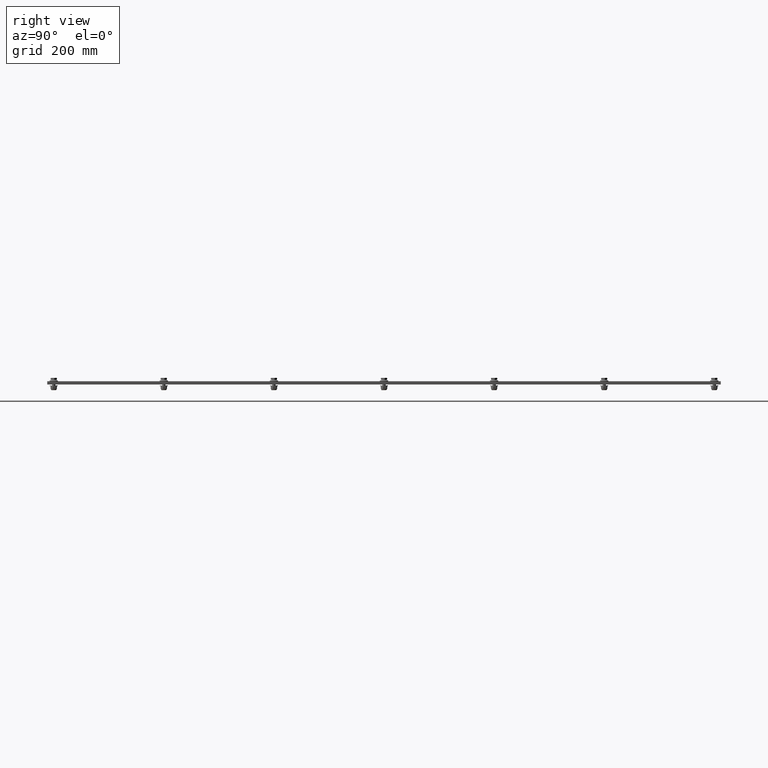
[diagram: clean part render]
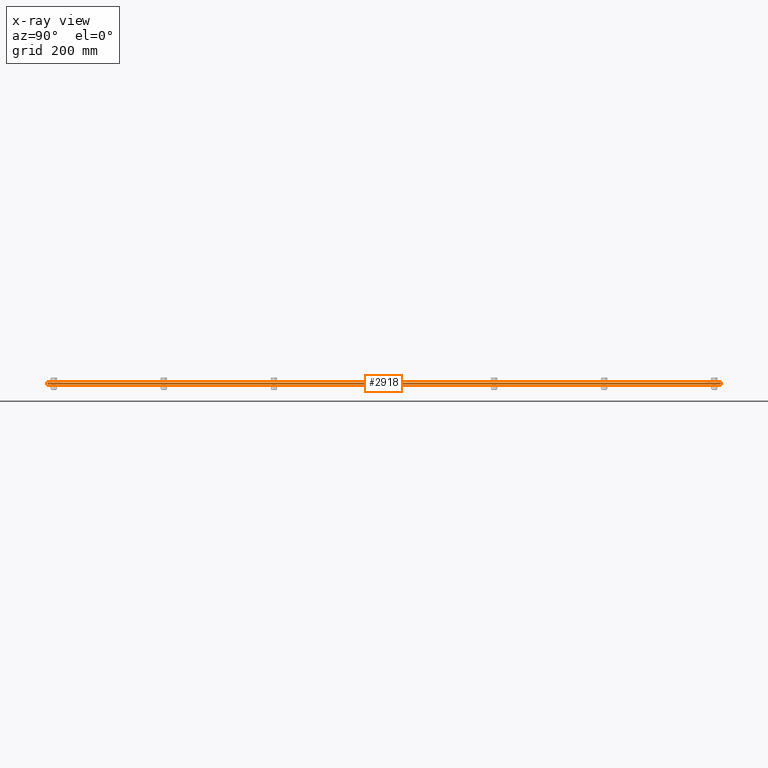
[diagram: x-ray — body ghosted, one internal face saturated and labeled with its STEP entity id]
A machine part, right view, then the same camera in x-ray: the body is ghosted and one INTERNAL B-rep face — a face not visible from any outside direction — is saturated and labeled: STEP entity #2918.
In plain terms, the highlighted planar face has unit normal (1, 0, 0).
Its self-contained STEP definition (entity closure, byte-faithful):
#619=FACE_OUTER_BOUND('',#882,.T.);
#882=EDGE_LOOP('',(#2226,#2227,#2228,#2229));
#1107=LINE('',#4549,#1272);
#1108=LINE('',#4551,#1273);
#1109=LINE('',#4553,#1274);
#1110=LINE('',#4554,#1275);
#1272=VECTOR('',#3733,52.);
#1273=VECTOR('',#3734,0.125);
#1274=VECTOR('',#3735,52.);
#1275=VECTOR('',#3736,0.125);
#1505=VERTEX_POINT('',#4547);
#1506=VERTEX_POINT('',#4548);
#1507=VERTEX_POINT('',#4550);
#1508=VERTEX_POINT('',#4552);
#1785=EDGE_CURVE('',#1505,#1506,#1107,.T.);
#1786=EDGE_CURVE('',#1507,#1506,#1108,.T.);
#1787=EDGE_CURVE('',#1508,#1507,#1109,.T.);
#1788=EDGE_CURVE('',#1508,#1505,#1110,.T.);
#2226=ORIENTED_EDGE('',*,*,#1785,.T.);
#2227=ORIENTED_EDGE('',*,*,#1786,.F.);
#2228=ORIENTED_EDGE('',*,*,#1787,.F.);
#2229=ORIENTED_EDGE('',*,*,#1788,.T.);
#2670=PLANE('',#3176);
#2918=ADVANCED_FACE('',(#619),#2670,.T.);
#3176=AXIS2_PLACEMENT_3D('',#4546,#3731,#3732);
#3731=DIRECTION('center_axis',(1.,3.22778347559101E-16,0.));
#3732=DIRECTION('ref_axis',(0.,0.,-1.));
#3733=DIRECTION('',(3.22778347559101E-16,-1.,0.));
#3734=DIRECTION('',(0.,0.,1.));
#3735=DIRECTION('',(3.22778347559101E-16,-1.,0.));
#3736=DIRECTION('',(0.,0.,1.));
#4546=CARTESIAN_POINT('Origin',(13.7300886570073,17.0296085104034,0.));
#4547=CARTESIAN_POINT('',(13.7300886570073,17.0296085104034,0.125));
#4548=CARTESIAN_POINT('',(13.7300886570073,-34.9703914895966,0.125));
#4549=CARTESIAN_POINT('',(13.7300886570073,17.0296085104034,0.125));
#4550=CARTESIAN_POINT('',(13.7300886570073,-34.9703914895966,0.));
#4551=CARTESIAN_POINT('',(13.7300886570073,-34.9703914895966,0.));
#4552=CARTESIAN_POINT('',(13.7300886570073,17.0296085104034,0.));
#4553=CARTESIAN_POINT('',(13.7300886570073,17.0296085104034,0.));
#4554=CARTESIAN_POINT('',(13.7300886570073,17.0296085104034,0.));